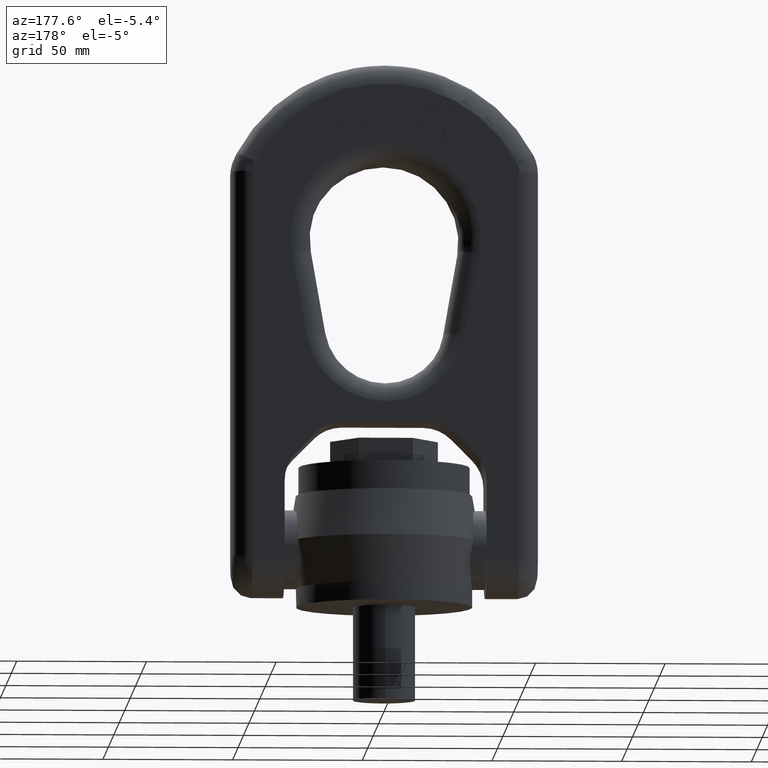
[diagram: clean part render]
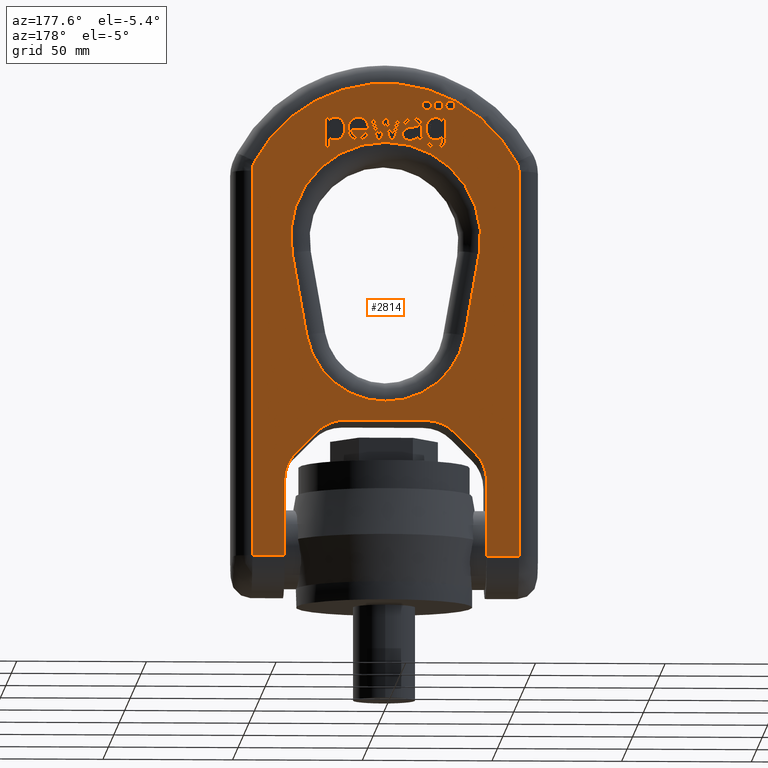
[diagram: same view with one face highlighted and labeled with its STEP entity id]
A machine part, auxiliary view. The second image highlights one B-rep face of the part: STEP entity #2814.
In plain terms, the highlighted planar face has unit normal (0, 1, 0).
Its self-contained STEP definition (entity closure, byte-faithful):
#337=B_SPLINE_CURVE_WITH_KNOTS('',3,(#7431,#7432,#7433,#7434),
 .UNSPECIFIED.,.F.,.F.,(4,4),(0.,1.),.UNSPECIFIED.);
#338=B_SPLINE_CURVE_WITH_KNOTS('',3,(#7436,#7437,#7438,#7439,#7440,#7441,
#7442,#7443,#7444,#7445),.UNSPECIFIED.,.F.,.F.,(4,2,2,2,4),(0.,0.228358481914092,
0.466434346037287,0.703045305681466,1.),.UNSPECIFIED.);
#339=B_SPLINE_CURVE_WITH_KNOTS('',3,(#7447,#7448,#7449,#7450),
 .UNSPECIFIED.,.F.,.F.,(4,4),(0.,1.),.UNSPECIFIED.);
#340=B_SPLINE_CURVE_WITH_KNOTS('',3,(#7454,#7455,#7456,#7457),
 .UNSPECIFIED.,.F.,.F.,(4,4),(0.,1.),.UNSPECIFIED.);
#341=B_SPLINE_CURVE_WITH_KNOTS('',3,(#7459,#7460,#7461,#7462),
 .UNSPECIFIED.,.F.,.F.,(4,4),(0.,1.),.UNSPECIFIED.);
#342=B_SPLINE_CURVE_WITH_KNOTS('',3,(#7464,#7465,#7466,#7467),
 .UNSPECIFIED.,.F.,.F.,(4,4),(0.,1.),.UNSPECIFIED.);
#343=B_SPLINE_CURVE_WITH_KNOTS('',3,(#7469,#7470,#7471,#7472),
 .UNSPECIFIED.,.F.,.F.,(4,4),(0.,1.),.UNSPECIFIED.);
#344=B_SPLINE_CURVE_WITH_KNOTS('',3,(#7474,#7475,#7476,#7477,#7478,#7479),
 .UNSPECIFIED.,.F.,.F.,(4,2,4),(0.,0.559782608695654,1.),.UNSPECIFIED.);
#345=B_SPLINE_CURVE_WITH_KNOTS('',3,(#7481,#7482,#7483,#7484),
 .UNSPECIFIED.,.F.,.F.,(4,4),(0.,1.),.UNSPECIFIED.);
#346=B_SPLINE_CURVE_WITH_KNOTS('',3,(#7488,#7489,#7490,#7491),
 .UNSPECIFIED.,.F.,.F.,(4,4),(0.,1.),.UNSPECIFIED.);
#347=B_SPLINE_CURVE_WITH_KNOTS('',3,(#7493,#7494,#7495,#7496,#7497,#7498),
 .UNSPECIFIED.,.F.,.F.,(4,2,4),(0.,0.476123595505615,1.),.UNSPECIFIED.);
#348=B_SPLINE_CURVE_WITH_KNOTS('',3,(#7500,#7501,#7502,#7503),
 .UNSPECIFIED.,.F.,.F.,(4,4),(0.,1.),.UNSPECIFIED.);
#349=B_SPLINE_CURVE_WITH_KNOTS('',3,(#7505,#7506,#7507,#7508,#7509,#7510,
#7511,#7512),.UNSPECIFIED.,.F.,.F.,(4,2,2,4),(0.,0.472355769230771,0.730769230769235,
1.),.UNSPECIFIED.);
#350=B_SPLINE_CURVE_WITH_KNOTS('',3,(#7514,#7515,#7516,#7517),
 .UNSPECIFIED.,.F.,.F.,(4,4),(0.,1.),.UNSPECIFIED.);
#351=B_SPLINE_CURVE_WITH_KNOTS('',3,(#7525,#7526,#7527,#7528),
 .UNSPECIFIED.,.F.,.F.,(4,4),(0.,1.),.UNSPECIFIED.);
#352=B_SPLINE_CURVE_WITH_KNOTS('',3,(#7530,#7531,#7532,#7533),
 .UNSPECIFIED.,.F.,.F.,(4,4),(0.,1.),.UNSPECIFIED.);
#353=B_SPLINE_CURVE_WITH_KNOTS('',3,(#7555,#7556,#7557,#7558),
 .UNSPECIFIED.,.F.,.F.,(4,4),(0.,1.),.UNSPECIFIED.);
#354=B_SPLINE_CURVE_WITH_KNOTS('',3,(#7568,#7569,#7570,#7571),
 .UNSPECIFIED.,.F.,.F.,(4,4),(0.,1.),.UNSPECIFIED.);
#355=B_SPLINE_CURVE_WITH_KNOTS('',3,(#7573,#7574,#7575,#7576,#7577,#7578),
 .UNSPECIFIED.,.F.,.F.,(4,2,4),(0.,0.434679334916865,1.),.UNSPECIFIED.);
#356=B_SPLINE_CURVE_WITH_KNOTS('',3,(#7580,#7581,#7582,#7583),
 .UNSPECIFIED.,.F.,.F.,(4,4),(0.,1.),.UNSPECIFIED.);
#357=B_SPLINE_CURVE_WITH_KNOTS('',3,(#7587,#7588,#7589,#7590),
 .UNSPECIFIED.,.F.,.F.,(4,4),(0.,1.),.UNSPECIFIED.);
#358=B_SPLINE_CURVE_WITH_KNOTS('',3,(#7592,#7593,#7594,#7595,#7596,#7597),
 .UNSPECIFIED.,.F.,.F.,(4,2,4),(0.,0.570469798657719,1.),.UNSPECIFIED.);
#359=B_SPLINE_CURVE_WITH_KNOTS('',3,(#7599,#7600,#7601,#7602,#7603,#7604,
#7605,#7606,#7607,#7608,#7609,#7610),.UNSPECIFIED.,.F.,.F.,(4,2,2,2,2,4),
(0.,0.122570626594233,0.245141253188469,0.495637533752417,0.746133814316361,
1.),.UNSPECIFIED.);
#360=B_SPLINE_CURVE_WITH_KNOTS('',3,(#7612,#7613,#7614,#7615),
 .UNSPECIFIED.,.F.,.F.,(4,4),(0.,1.),.UNSPECIFIED.);
#361=B_SPLINE_CURVE_WITH_KNOTS('',3,(#7616,#7617,#7618,#7619),
 .UNSPECIFIED.,.F.,.F.,(4,4),(0.,1.),.UNSPECIFIED.);
#362=B_SPLINE_CURVE_WITH_KNOTS('',3,(#7622,#7623,#7624,#7625),
 .UNSPECIFIED.,.F.,.F.,(4,4),(0.,1.),.UNSPECIFIED.);
#363=B_SPLINE_CURVE_WITH_KNOTS('',3,(#7627,#7628,#7629,#7630,#7631,#7632,
#7633,#7634,#7635,#7636),.UNSPECIFIED.,.F.,.F.,(4,2,2,2,4),(0.,0.230139294836347,
0.492074150143504,0.754009005450667,1.),.UNSPECIFIED.);
#364=B_SPLINE_CURVE_WITH_KNOTS('',3,(#7653,#7654,#7655,#7656,#7657,#7658),
 .UNSPECIFIED.,.F.,.F.,(4,2,4),(0.,0.329498767460961,1.),.UNSPECIFIED.);
#365=B_SPLINE_CURVE_WITH_KNOTS('',3,(#7661,#7662,#7663,#7664,#7665,#7666,
#7667,#7668),.UNSPECIFIED.,.F.,.F.,(4,2,2,4),(0.,0.361028692437345,0.681441656975491,
1.),.UNSPECIFIED.);
#366=B_SPLINE_CURVE_WITH_KNOTS('',3,(#7670,#7671,#7672,#7673),
 .UNSPECIFIED.,.F.,.F.,(4,4),(0.,1.),.UNSPECIFIED.);
#367=B_SPLINE_CURVE_WITH_KNOTS('',3,(#7677,#7678,#7679,#7680),
 .UNSPECIFIED.,.F.,.F.,(4,4),(0.,1.),.UNSPECIFIED.);
#368=B_SPLINE_CURVE_WITH_KNOTS('',3,(#7682,#7683,#7684,#7685,#7686,#7687),
 .UNSPECIFIED.,.F.,.F.,(4,2,4),(0.,0.55580357142857,1.),.UNSPECIFIED.);
#369=B_SPLINE_CURVE_WITH_KNOTS('',3,(#7689,#7690,#7691,#7692,#7693,#7694),
 .UNSPECIFIED.,.F.,.F.,(4,2,4),(0.,0.499999999999998,1.),.UNSPECIFIED.);
#370=B_SPLINE_CURVE_WITH_KNOTS('',3,(#7696,#7697,#7698,#7699,#7700,#7701,
#7702,#7703,#7704,#7705,#7706,#7707,#7708,#7709),.UNSPECIFIED.,.F.,.F.,
(4,2,2,2,2,2,4),(0.,0.152201346045993,0.327187324733602,0.502173303421207,
0.67631800336512,0.850462703309032,1.),.UNSPECIFIED.);
#1766=LINE('',#7041,#2074);
#1769=LINE('',#7050,#2077);
#1771=LINE('',#7059,#2079);
#1772=LINE('',#7063,#2080);
#1815=LINE('',#7395,#2123);
#1816=LINE('',#7400,#2124);
#1817=LINE('',#7406,#2125);
#1818=LINE('',#7407,#2126);
#1819=LINE('',#7411,#2127);
#1820=LINE('',#7415,#2128);
#1821=LINE('',#7419,#2129);
#1822=LINE('',#7422,#2130);
#1823=LINE('',#7423,#2131);
#1824=LINE('',#7428,#2132);
#1825=LINE('',#7452,#2133);
#1826=LINE('',#7486,#2134);
#1827=LINE('',#7518,#2135);
#1828=LINE('',#7521,#2136);
#1829=LINE('',#7523,#2137);
#1830=LINE('',#7535,#2138);
#1831=LINE('',#7537,#2139);
#1832=LINE('',#7539,#2140);
#1833=LINE('',#7541,#2141);
#1834=LINE('',#7543,#2142);
#1835=LINE('',#7545,#2143);
#1836=LINE('',#7547,#2144);
#1837=LINE('',#7549,#2145);
#1838=LINE('',#7551,#2146);
#1839=LINE('',#7553,#2147);
#1840=LINE('',#7560,#2148);
#1841=LINE('',#7562,#2149);
#1842=LINE('',#7564,#2150);
#1843=LINE('',#7565,#2151);
#1844=LINE('',#7585,#2152);
#1845=LINE('',#7638,#2153);
#1846=LINE('',#7640,#2154);
#1847=LINE('',#7642,#2155);
#1848=LINE('',#7644,#2156);
#1849=LINE('',#7646,#2157);
#1850=LINE('',#7648,#2158);
#1851=LINE('',#7650,#2159);
#1852=LINE('',#7675,#2160);
#1853=LINE('',#7711,#2161);
#1854=LINE('',#7713,#2162);
#1855=LINE('',#7715,#2163);
#2074=VECTOR('',#6167,1.);
#2077=VECTOR('',#6174,1.);
#2079=VECTOR('',#6182,1.);
#2080=VECTOR('',#6187,1.);
#2123=VECTOR('',#6260,1.);
#2124=VECTOR('',#6263,1.);
#2125=VECTOR('',#6268,1.);
#2126=VECTOR('',#6269,1.);
#2127=VECTOR('',#6272,1.);
#2128=VECTOR('',#6275,1.);
#2129=VECTOR('',#6278,1.);
#2130=VECTOR('',#6281,1.);
#2131=VECTOR('',#6282,1.);
#2132=VECTOR('',#6287,1.);
#2133=VECTOR('',#6288,1.);
#2134=VECTOR('',#6289,1.);
#2135=VECTOR('',#6290,1.);
#2136=VECTOR('',#6291,1.);
#2137=VECTOR('',#6292,1.);
#2138=VECTOR('',#6293,1.);
#2139=VECTOR('',#6294,1.);
#2140=VECTOR('',#6295,1.);
#2141=VECTOR('',#6296,1.);
#2142=VECTOR('',#6297,1.);
#2143=VECTOR('',#6298,1.);
#2144=VECTOR('',#6299,1.);
#2145=VECTOR('',#6300,1.);
#2146=VECTOR('',#6301,1.);
#2147=VECTOR('',#6302,1.);
#2148=VECTOR('',#6303,1.);
#2149=VECTOR('',#6304,1.);
#2150=VECTOR('',#6305,1.);
#2151=VECTOR('',#6306,1.);
#2152=VECTOR('',#6307,1.);
#2153=VECTOR('',#6308,1.);
#2154=VECTOR('',#6309,1.);
#2155=VECTOR('',#6310,1.);
#2156=VECTOR('',#6311,1.);
#2157=VECTOR('',#6312,1.);
#2158=VECTOR('',#6313,1.);
#2159=VECTOR('',#6314,1.);
#2160=VECTOR('',#6317,1.);
#2161=VECTOR('',#6318,1.);
#2162=VECTOR('',#6319,1.);
#2163=VECTOR('',#6320,1.);
#2686=PLANE('',#5894);
#2814=ADVANCED_FACE('',(#3097,#3098,#3099,#3100,#3101,#3102,#3103,#3104,
#3105,#3106),#2686,.T.);
#3097=FACE_BOUND('',#3183,.T.);
#3098=FACE_BOUND('',#3184,.T.);
#3099=FACE_BOUND('',#3185,.T.);
#3100=FACE_BOUND('',#3186,.T.);
#3101=FACE_BOUND('',#3187,.T.);
#3102=FACE_BOUND('',#3188,.T.);
#3103=FACE_BOUND('',#3189,.T.);
#3104=FACE_BOUND('',#3190,.T.);
#3105=FACE_BOUND('',#3191,.T.);
#3106=FACE_BOUND('',#3192,.T.);
#3183=EDGE_LOOP('',(#3628,#3629,#3630,#3631));
#3184=EDGE_LOOP('',(#3632,#3633,#3634,#3635,#3636,#3637,#3638,#3639,#3640,
#3641,#3642,#3643,#3644,#3645,#3646,#3647,#3648,#3649));
#3185=EDGE_LOOP('',(#3650,#3651,#3652,#3653,#3654,#3655,#3656,#3657,#3658,
#3659,#3660,#3661,#3662,#3663,#3664,#3665,#3666));
#3186=EDGE_LOOP('',(#3667,#3668,#3669,#3670,#3671,#3672,#3673,#3674,#3675,
#3676,#3677,#3678,#3679,#3680,#3681,#3682,#3683,#3684,#3685));
#3187=EDGE_LOOP('',(#3686,#3687,#3688,#3689,#3690,#3691,#3692,#3693,#3694));
#3188=EDGE_LOOP('',(#3695,#3696,#3697,#3698,#3699,#3700,#3701,#3702,#3703,
#3704));
#3189=EDGE_LOOP('',(#3705));
#3190=EDGE_LOOP('',(#3706,#3707,#3708,#3709,#3710,#3711,#3712,#3713,#3714,
#3715,#3716));
#3191=EDGE_LOOP('',(#3717));
#3192=EDGE_LOOP('',(#3718));
#3628=ORIENTED_EDGE('',*,*,#5263,.T.);
#3629=ORIENTED_EDGE('',*,*,#5264,.T.);
#3630=ORIENTED_EDGE('',*,*,#5265,.T.);
#3631=ORIENTED_EDGE('',*,*,#5266,.T.);
#3632=ORIENTED_EDGE('',*,*,#5267,.T.);
#3633=ORIENTED_EDGE('',*,*,#5268,.T.);
#3634=ORIENTED_EDGE('',*,*,#5173,.T.);
#3635=ORIENTED_EDGE('',*,*,#5167,.T.);
#3636=ORIENTED_EDGE('',*,*,#5269,.T.);
#3637=ORIENTED_EDGE('',*,*,#5270,.T.);
#3638=ORIENTED_EDGE('',*,*,#5271,.T.);
#3639=ORIENTED_EDGE('',*,*,#5272,.T.);
#3640=ORIENTED_EDGE('',*,*,#5273,.T.);
#3641=ORIENTED_EDGE('',*,*,#5274,.T.);
#3642=ORIENTED_EDGE('',*,*,#5275,.T.);
#3643=ORIENTED_EDGE('',*,*,#5276,.T.);
#3644=ORIENTED_EDGE('',*,*,#5163,.T.);
#3645=ORIENTED_EDGE('',*,*,#5277,.T.);
#3646=ORIENTED_EDGE('',*,*,#5171,.T.);
#3647=ORIENTED_EDGE('',*,*,#5278,.T.);
#3648=ORIENTED_EDGE('',*,*,#5279,.T.);
#3649=ORIENTED_EDGE('',*,*,#5280,.T.);
#3650=ORIENTED_EDGE('',*,*,#5281,.F.);
#3651=ORIENTED_EDGE('',*,*,#5282,.F.);
#3652=ORIENTED_EDGE('',*,*,#5283,.F.);
#3653=ORIENTED_EDGE('',*,*,#5284,.F.);
#3654=ORIENTED_EDGE('',*,*,#5285,.F.);
#3655=ORIENTED_EDGE('',*,*,#5286,.F.);
#3656=ORIENTED_EDGE('',*,*,#5287,.F.);
#3657=ORIENTED_EDGE('',*,*,#5288,.F.);
#3658=ORIENTED_EDGE('',*,*,#5289,.F.);
#3659=ORIENTED_EDGE('',*,*,#5290,.F.);
#3660=ORIENTED_EDGE('',*,*,#5291,.F.);
#3661=ORIENTED_EDGE('',*,*,#5292,.F.);
#3662=ORIENTED_EDGE('',*,*,#5293,.F.);
#3663=ORIENTED_EDGE('',*,*,#5294,.F.);
#3664=ORIENTED_EDGE('',*,*,#5295,.F.);
#3665=ORIENTED_EDGE('',*,*,#5296,.F.);
#3666=ORIENTED_EDGE('',*,*,#5297,.F.);
#3667=ORIENTED_EDGE('',*,*,#5298,.F.);
#3668=ORIENTED_EDGE('',*,*,#5299,.F.);
#3669=ORIENTED_EDGE('',*,*,#5300,.F.);
#3670=ORIENTED_EDGE('',*,*,#5301,.F.);
#3671=ORIENTED_EDGE('',*,*,#5302,.F.);
#3672=ORIENTED_EDGE('',*,*,#5303,.F.);
#3673=ORIENTED_EDGE('',*,*,#5304,.F.);
#3674=ORIENTED_EDGE('',*,*,#5305,.F.);
#3675=ORIENTED_EDGE('',*,*,#5306,.F.);
#3676=ORIENTED_EDGE('',*,*,#5307,.F.);
#3677=ORIENTED_EDGE('',*,*,#5308,.F.);
#3678=ORIENTED_EDGE('',*,*,#5309,.F.);
#3679=ORIENTED_EDGE('',*,*,#5310,.F.);
#3680=ORIENTED_EDGE('',*,*,#5311,.F.);
#3681=ORIENTED_EDGE('',*,*,#5312,.F.);
#3682=ORIENTED_EDGE('',*,*,#5313,.F.);
#3683=ORIENTED_EDGE('',*,*,#5314,.F.);
#3684=ORIENTED_EDGE('',*,*,#5315,.F.);
#3685=ORIENTED_EDGE('',*,*,#5316,.F.);
#3686=ORIENTED_EDGE('',*,*,#5317,.F.);
#3687=ORIENTED_EDGE('',*,*,#5318,.F.);
#3688=ORIENTED_EDGE('',*,*,#5319,.F.);
#3689=ORIENTED_EDGE('',*,*,#5320,.F.);
#3690=ORIENTED_EDGE('',*,*,#5321,.F.);
#3691=ORIENTED_EDGE('',*,*,#5322,.F.);
#3692=ORIENTED_EDGE('',*,*,#5323,.F.);
#3693=ORIENTED_EDGE('',*,*,#5324,.F.);
#3694=ORIENTED_EDGE('',*,*,#5325,.F.);
#3695=ORIENTED_EDGE('',*,*,#5326,.F.);
#3696=ORIENTED_EDGE('',*,*,#5327,.F.);
#3697=ORIENTED_EDGE('',*,*,#5328,.F.);
#3698=ORIENTED_EDGE('',*,*,#5329,.F.);
#3699=ORIENTED_EDGE('',*,*,#5330,.F.);
#3700=ORIENTED_EDGE('',*,*,#5331,.F.);
#3701=ORIENTED_EDGE('',*,*,#5332,.F.);
#3702=ORIENTED_EDGE('',*,*,#5333,.F.);
#3703=ORIENTED_EDGE('',*,*,#5334,.F.);
#3704=ORIENTED_EDGE('',*,*,#5335,.F.);
#3705=ORIENTED_EDGE('',*,*,#5336,.F.);
#3706=ORIENTED_EDGE('',*,*,#5337,.F.);
#3707=ORIENTED_EDGE('',*,*,#5338,.F.);
#3708=ORIENTED_EDGE('',*,*,#5339,.F.);
#3709=ORIENTED_EDGE('',*,*,#5340,.F.);
#3710=ORIENTED_EDGE('',*,*,#5341,.F.);
#3711=ORIENTED_EDGE('',*,*,#5342,.F.);
#3712=ORIENTED_EDGE('',*,*,#5343,.F.);
#3713=ORIENTED_EDGE('',*,*,#5344,.F.);
#3714=ORIENTED_EDGE('',*,*,#5345,.F.);
#3715=ORIENTED_EDGE('',*,*,#5346,.F.);
#3716=ORIENTED_EDGE('',*,*,#5347,.F.);
#3717=ORIENTED_EDGE('',*,*,#5348,.F.);
#3718=ORIENTED_EDGE('',*,*,#5349,.F.);
#4731=VERTEX_POINT('',#7040);
#4732=VERTEX_POINT('',#7042);
#4735=VERTEX_POINT('',#7049);
#4736=VERTEX_POINT('',#7051);
#4739=VERTEX_POINT('',#7058);
#4740=VERTEX_POINT('',#7060);
#4741=VERTEX_POINT('',#7064);
#4827=VERTEX_POINT('',#7396);
#4828=VERTEX_POINT('',#7397);
#4829=VERTEX_POINT('',#7399);
#4830=VERTEX_POINT('',#7401);
#4831=VERTEX_POINT('',#7404);
#4832=VERTEX_POINT('',#7405);
#4833=VERTEX_POINT('',#7408);
#4834=VERTEX_POINT('',#7410);
#4835=VERTEX_POINT('',#7412);
#4836=VERTEX_POINT('',#7414);
#4837=VERTEX_POINT('',#7416);
#4838=VERTEX_POINT('',#7418);
#4839=VERTEX_POINT('',#7420);
#4840=VERTEX_POINT('',#7424);
#4841=VERTEX_POINT('',#7426);
#4842=VERTEX_POINT('',#7429);
#4843=VERTEX_POINT('',#7430);
#4844=VERTEX_POINT('',#7435);
#4845=VERTEX_POINT('',#7446);
#4846=VERTEX_POINT('',#7451);
#4847=VERTEX_POINT('',#7453);
#4848=VERTEX_POINT('',#7458);
#4849=VERTEX_POINT('',#7463);
#4850=VERTEX_POINT('',#7468);
#4851=VERTEX_POINT('',#7473);
#4852=VERTEX_POINT('',#7480);
#4853=VERTEX_POINT('',#7485);
#4854=VERTEX_POINT('',#7487);
#4855=VERTEX_POINT('',#7492);
#4856=VERTEX_POINT('',#7499);
#4857=VERTEX_POINT('',#7504);
#4858=VERTEX_POINT('',#7513);
#4859=VERTEX_POINT('',#7519);
#4860=VERTEX_POINT('',#7520);
#4861=VERTEX_POINT('',#7522);
#4862=VERTEX_POINT('',#7524);
#4863=VERTEX_POINT('',#7529);
#4864=VERTEX_POINT('',#7534);
#4865=VERTEX_POINT('',#7536);
#4866=VERTEX_POINT('',#7538);
#4867=VERTEX_POINT('',#7540);
#4868=VERTEX_POINT('',#7542);
#4869=VERTEX_POINT('',#7544);
#4870=VERTEX_POINT('',#7546);
#4871=VERTEX_POINT('',#7548);
#4872=VERTEX_POINT('',#7550);
#4873=VERTEX_POINT('',#7552);
#4874=VERTEX_POINT('',#7554);
#4875=VERTEX_POINT('',#7559);
#4876=VERTEX_POINT('',#7561);
#4877=VERTEX_POINT('',#7563);
#4878=VERTEX_POINT('',#7566);
#4879=VERTEX_POINT('',#7567);
#4880=VERTEX_POINT('',#7572);
#4881=VERTEX_POINT('',#7579);
#4882=VERTEX_POINT('',#7584);
#4883=VERTEX_POINT('',#7586);
#4884=VERTEX_POINT('',#7591);
#4885=VERTEX_POINT('',#7598);
#4886=VERTEX_POINT('',#7611);
#4887=VERTEX_POINT('',#7620);
#4888=VERTEX_POINT('',#7621);
#4889=VERTEX_POINT('',#7626);
#4890=VERTEX_POINT('',#7637);
#4891=VERTEX_POINT('',#7639);
#4892=VERTEX_POINT('',#7641);
#4893=VERTEX_POINT('',#7643);
#4894=VERTEX_POINT('',#7645);
#4895=VERTEX_POINT('',#7647);
#4896=VERTEX_POINT('',#7649);
#4897=VERTEX_POINT('',#7652);
#4898=VERTEX_POINT('',#7659);
#4899=VERTEX_POINT('',#7660);
#4900=VERTEX_POINT('',#7669);
#4901=VERTEX_POINT('',#7674);
#4902=VERTEX_POINT('',#7676);
#4903=VERTEX_POINT('',#7681);
#4904=VERTEX_POINT('',#7688);
#4905=VERTEX_POINT('',#7695);
#4906=VERTEX_POINT('',#7710);
#4907=VERTEX_POINT('',#7712);
#4908=VERTEX_POINT('',#7714);
#4909=VERTEX_POINT('',#7717);
#4910=VERTEX_POINT('',#7719);
#5163=EDGE_CURVE('',#4732,#4731,#1766,.T.);
#5167=EDGE_CURVE('',#4736,#4735,#1769,.T.);
#5171=EDGE_CURVE('',#4740,#4739,#1771,.T.);
#5173=EDGE_CURVE('',#4741,#4736,#1772,.T.);
#5263=EDGE_CURVE('',#4827,#4828,#1815,.T.);
#5264=EDGE_CURVE('',#4828,#4829,#5775,.T.);
#5265=EDGE_CURVE('',#4829,#4830,#1816,.T.);
#5266=EDGE_CURVE('',#4830,#4827,#5776,.T.);
#5267=EDGE_CURVE('',#4831,#4832,#5777,.T.);
#5268=EDGE_CURVE('',#4832,#4741,#1817,.T.);
#5269=EDGE_CURVE('',#4735,#4833,#1818,.T.);
#5270=EDGE_CURVE('',#4833,#4834,#5778,.T.);
#5271=EDGE_CURVE('',#4834,#4835,#1819,.T.);
#5272=EDGE_CURVE('',#4835,#4836,#5779,.T.);
#5273=EDGE_CURVE('',#4836,#4837,#1820,.T.);
#5274=EDGE_CURVE('',#4837,#4838,#5780,.T.);
#5275=EDGE_CURVE('',#4838,#4839,#1821,.T.);
#5276=EDGE_CURVE('',#4839,#4732,#5781,.T.);
#5277=EDGE_CURVE('',#4731,#4740,#1822,.T.);
#5278=EDGE_CURVE('',#4739,#4840,#1823,.T.);
#5279=EDGE_CURVE('',#4840,#4841,#5782,.T.);
#5280=EDGE_CURVE('',#4841,#4831,#5783,.T.);
#5281=EDGE_CURVE('',#4842,#4843,#1824,.T.);
#5282=EDGE_CURVE('',#4844,#4842,#337,.T.);
#5283=EDGE_CURVE('',#4845,#4844,#338,.T.);
#5284=EDGE_CURVE('',#4846,#4845,#339,.T.);
#5285=EDGE_CURVE('',#4847,#4846,#1825,.T.);
#5286=EDGE_CURVE('',#4848,#4847,#340,.T.);
#5287=EDGE_CURVE('',#4849,#4848,#341,.T.);
#5288=EDGE_CURVE('',#4850,#4849,#342,.T.);
#5289=EDGE_CURVE('',#4851,#4850,#343,.T.);
#5290=EDGE_CURVE('',#4852,#4851,#344,.T.);
#5291=EDGE_CURVE('',#4853,#4852,#345,.T.);
#5292=EDGE_CURVE('',#4854,#4853,#1826,.T.);
#5293=EDGE_CURVE('',#4855,#4854,#346,.T.);
#5294=EDGE_CURVE('',#4856,#4855,#347,.T.);
#5295=EDGE_CURVE('',#4857,#4856,#348,.T.);
#5296=EDGE_CURVE('',#4858,#4857,#349,.T.);
#5297=EDGE_CURVE('',#4843,#4858,#350,.T.);
#5298=EDGE_CURVE('',#4859,#4860,#1827,.T.);
#5299=EDGE_CURVE('',#4861,#4859,#1828,.T.);
#5300=EDGE_CURVE('',#4862,#4861,#1829,.T.);
#5301=EDGE_CURVE('',#4863,#4862,#351,.T.);
#5302=EDGE_CURVE('',#4864,#4863,#352,.T.);
#5303=EDGE_CURVE('',#4865,#4864,#1830,.T.);
#5304=EDGE_CURVE('',#4866,#4865,#1831,.T.);
#5305=EDGE_CURVE('',#4867,#4866,#1832,.T.);
#5306=EDGE_CURVE('',#4868,#4867,#1833,.T.);
#5307=EDGE_CURVE('',#4869,#4868,#1834,.T.);
#5308=EDGE_CURVE('',#4870,#4869,#1835,.T.);
#5309=EDGE_CURVE('',#4871,#4870,#1836,.T.);
#5310=EDGE_CURVE('',#4872,#4871,#1837,.T.);
#5311=EDGE_CURVE('',#4873,#4872,#1838,.T.);
#5312=EDGE_CURVE('',#4874,#4873,#1839,.T.);
#5313=EDGE_CURVE('',#4875,#4874,#353,.T.);
#5314=EDGE_CURVE('',#4876,#4875,#1840,.T.);
#5315=EDGE_CURVE('',#4877,#4876,#1841,.T.);
#5316=EDGE_CURVE('',#4860,#4877,#1842,.T.);
#5317=EDGE_CURVE('',#4878,#4879,#1843,.T.);
#5318=EDGE_CURVE('',#4880,#4878,#354,.T.);
#5319=EDGE_CURVE('',#4881,#4880,#355,.T.);
#5320=EDGE_CURVE('',#4882,#4881,#356,.T.);
#5321=EDGE_CURVE('',#4883,#4882,#1844,.T.);
#5322=EDGE_CURVE('',#4884,#4883,#357,.T.);
#5323=EDGE_CURVE('',#4885,#4884,#358,.T.);
#5324=EDGE_CURVE('',#4886,#4885,#359,.T.);
#5325=EDGE_CURVE('',#4879,#4886,#360,.T.);
#5326=EDGE_CURVE('',#4887,#4888,#361,.T.);
#5327=EDGE_CURVE('',#4889,#4887,#362,.T.);
#5328=EDGE_CURVE('',#4890,#4889,#363,.T.);
#5329=EDGE_CURVE('',#4891,#4890,#1845,.T.);
#5330=EDGE_CURVE('',#4892,#4891,#1846,.T.);
#5331=EDGE_CURVE('',#4893,#4892,#1847,.T.);
#5332=EDGE_CURVE('',#4894,#4893,#1848,.T.);
#5333=EDGE_CURVE('',#4895,#4894,#1849,.T.);
#5334=EDGE_CURVE('',#4896,#4895,#1850,.T.);
#5335=EDGE_CURVE('',#4888,#4896,#1851,.T.);
#5336=EDGE_CURVE('',#4897,#4897,#5784,.T.);
#5337=EDGE_CURVE('',#4898,#4899,#364,.T.);
#5338=EDGE_CURVE('',#4900,#4898,#365,.T.);
#5339=EDGE_CURVE('',#4901,#4900,#366,.T.);
#5340=EDGE_CURVE('',#4902,#4901,#1852,.T.);
#5341=EDGE_CURVE('',#4903,#4902,#367,.T.);
#5342=EDGE_CURVE('',#4904,#4903,#368,.T.);
#5343=EDGE_CURVE('',#4905,#4904,#369,.T.);
#5344=EDGE_CURVE('',#4906,#4905,#370,.T.);
#5345=EDGE_CURVE('',#4907,#4906,#1853,.T.);
#5346=EDGE_CURVE('',#4908,#4907,#1854,.T.);
#5347=EDGE_CURVE('',#4899,#4908,#1855,.T.);
#5348=EDGE_CURVE('',#4909,#4909,#5785,.T.);
#5349=EDGE_CURVE('',#4910,#4910,#5786,.T.);
#5775=CIRCLE('',#5882,36.6);
#5776=CIRCLE('',#5883,30.9262655562737);
#5777=CIRCLE('',#5884,7.6);
#5778=CIRCLE('',#5885,15.2);
#5779=CIRCLE('',#5886,15.2);
#5780=CIRCLE('',#5887,15.2);
#5781=CIRCLE('',#5888,15.2);
#5782=CIRCLE('',#5889,7.6);
#5783=CIRCLE('',#5890,57.2026315789474);
#5784=CIRCLE('',#5891,1.74);
#5785=CIRCLE('',#5892,1.74);
#5786=CIRCLE('',#5893,1.74);
#5882=AXIS2_PLACEMENT_3D('',#7398,#6261,#6262);
#5883=AXIS2_PLACEMENT_3D('',#7402,#6264,#6265);
#5884=AXIS2_PLACEMENT_3D('',#7403,#6266,#6267);
#5885=AXIS2_PLACEMENT_3D('',#7409,#6270,#6271);
#5886=AXIS2_PLACEMENT_3D('',#7413,#6273,#6274);
#5887=AXIS2_PLACEMENT_3D('',#7417,#6276,#6277);
#5888=AXIS2_PLACEMENT_3D('',#7421,#6279,#6280);
#5889=AXIS2_PLACEMENT_3D('',#7425,#6283,#6284);
#5890=AXIS2_PLACEMENT_3D('',#7427,#6285,#6286);
#5891=AXIS2_PLACEMENT_3D('',#7651,#6315,#6316);
#5892=AXIS2_PLACEMENT_3D('',#7716,#6321,#6322);
#5893=AXIS2_PLACEMENT_3D('',#7718,#6323,#6324);
#5894=AXIS2_PLACEMENT_3D('',#7720,#6325,#6326);
#6167=DIRECTION('',(-1.28498035257541E-16,3.01059425481522E-31,-1.));
#6174=DIRECTION('',(-1.28498035257541E-16,3.01059425481522E-31,1.));
#6182=DIRECTION('',(-1.,2.34291072916505E-15,1.17608371252665E-15));
#6187=DIRECTION('',(-1.,2.34291072916505E-15,1.17608371252665E-15));
#6260=DIRECTION('',(0.173648177666931,-4.06842178555811E-16,0.984807753012208));
#6261=DIRECTION('',(-2.34291072916505E-15,-1.,0.));
#6262=DIRECTION('',(-1.,2.32244399789245E-15,0.));
#6263=DIRECTION('',(0.173648177666931,-4.06842178555811E-16,-0.984807753012208));
#6264=DIRECTION('',(-2.34291072916505E-15,-1.,0.));
#6265=DIRECTION('',(-1.,2.35587403394865E-15,0.));
#6266=DIRECTION('',(2.34291072916505E-15,1.,0.));
#6267=DIRECTION('',(-1.,2.28253088944317E-15,0.));
#6268=DIRECTION('',(8.28524645242654E-17,-1.94115928071668E-31,-1.));
#6269=DIRECTION('',(-1.28498035257541E-16,3.01059425481522E-31,1.));
#6270=DIRECTION('',(-2.34291072916505E-15,-1.,0.));
#6271=DIRECTION('',(-1.,2.39665743391533E-15,0.));
#6272=DIRECTION('',(-0.707106781186548,1.65668806430732E-15,0.707106781186547));
#6273=DIRECTION('',(-2.34291072916505E-15,-1.,0.));
#6274=DIRECTION('',(-1.,2.39665743391533E-15,0.));
#6275=DIRECTION('',(-1.,2.34291072916505E-15,0.));
#6276=DIRECTION('',(-2.34291072916505E-15,-1.,0.));
#6277=DIRECTION('',(-1.,2.39665743391533E-15,0.));
#6278=DIRECTION('',(-0.707106781186548,1.65668806430732E-15,-0.707106781186547));
#6279=DIRECTION('',(-2.34291072916505E-15,-1.,0.));
#6280=DIRECTION('',(-1.,2.39665743391533E-15,0.));
#6281=DIRECTION('',(-1.28498035257541E-16,3.01059425481522E-31,-1.));
#6282=DIRECTION('',(8.28524645242654E-17,-1.94115928071668E-31,1.));
#6283=DIRECTION('',(2.34291072916505E-15,1.,0.));
#6284=DIRECTION('',(-1.,2.28253088944317E-15,0.));
#6285=DIRECTION('',(2.34291072916505E-15,1.,0.));
#6286=DIRECTION('',(-1.,2.33509724925617E-15,0.));
#6287=DIRECTION('',(-1.,2.34291072916505E-15,0.));
#6288=DIRECTION('',(0.989370262977938,-2.31800620424786E-15,-0.14541830261341));
#6289=DIRECTION('',(-0.991928985003781,2.32400106153516E-15,-0.126794671454947));
#6290=DIRECTION('',(-0.304245570453574,7.1282021131662E-16,0.952593634693923));
#6291=DIRECTION('',(-1.,2.34291072916505E-15,0.));
#6292=DIRECTION('',(-0.259135455314436,6.07131238563263E-16,-0.965840988879112));
#6293=DIRECTION('',(-1.,2.34291072916505E-15,0.));
#6294=DIRECTION('',(-0.254367653151694,5.95960703721637E-16,0.967107593305988));
#6295=DIRECTION('',(-1.,2.34291072916505E-15,0.));
#6296=DIRECTION('',(-0.298320908470945,6.98939257190841E-16,-0.954465628280595));
#6297=DIRECTION('',(1.,-2.34291072916505E-15,0.));
#6298=DIRECTION('',(0.269463722620021,-6.31329446847201E-16,0.963010541059526));
#6299=DIRECTION('',(0.247736970080365,-5.80425605212129E-16,-0.968827329122894));
#6300=DIRECTION('',(0.266059563516178,-6.23353805959023E-16,-0.96395659065208));
#6301=DIRECTION('',(1.,-2.34291072916505E-15,0.));
#6302=DIRECTION('',(0.253070161005813,-5.92920795452047E-16,0.96744792811215));
#6303=DIRECTION('',(1.,-2.34291072916505E-15,0.));
#6304=DIRECTION('',(0.287282618696352,-6.73077529646313E-16,-0.957845862858407));
#6305=DIRECTION('',(1.,-2.34291072916505E-15,0.));
#6306=DIRECTION('',(-1.,2.34291072916505E-15,0.));
#6307=DIRECTION('',(0.992687288142562,-2.32577769809496E-15,0.120714323757234));
#6308=DIRECTION('',(-1.,2.34291072916505E-15,0.));
#6309=DIRECTION('',(0.,0.,1.));
#6310=DIRECTION('',(-1.,2.34291072916505E-15,0.));
#6311=DIRECTION('',(0.,0.,-1.));
#6312=DIRECTION('',(1.,-2.34291072916505E-15,0.));
#6313=DIRECTION('',(0.,0.,1.));
#6314=DIRECTION('',(1.,-2.34291072916505E-15,0.));
#6315=DIRECTION('',(2.34291072916505E-15,1.,0.));
#6316=DIRECTION('',(0.,0.,-0.999999999999994));
#6317=DIRECTION('',(0.988666662925712,-2.31635773213646E-15,0.150127377980622));
#6318=DIRECTION('',(1.,-2.34291072916505E-15,0.));
#6319=DIRECTION('',(0.,0.,-1.));
#6320=DIRECTION('',(1.,-2.34291072916505E-15,0.));
#6321=DIRECTION('',(2.34291072916505E-15,1.,0.));
#6322=DIRECTION('',(0.,0.,-0.999999999999994));
#6323=DIRECTION('',(2.34291072916505E-15,1.,0.));
#6324=DIRECTION('',(0.,0.,-0.999999999999994));
#6325=DIRECTION('',(2.34291072916505E-15,1.,0.));
#6326=DIRECTION('',(0.,0.,-1.));
#7040=CARTESIAN_POINT('',(-38.94,15.2000000000001,22.2));
#7041=CARTESIAN_POINT('',(-38.94,15.2000000000001,144.197368421053));
#7042=CARTESIAN_POINT('',(-38.94,15.2000000000001,47.703953851929));
#7049=CARTESIAN_POINT('',(38.94,15.1999999999999,22.2));
#7050=CARTESIAN_POINT('',(38.94,15.1999999999999,144.197368421053));
#7051=CARTESIAN_POINT('',(38.94,15.1999999999999,18.6999999999999));
#7058=CARTESIAN_POINT('',(-51.4,15.2000000000001,18.7000000000001));
#7059=CARTESIAN_POINT('',(59.0000000000001,15.1999999999999,18.6999999999999));
#7060=CARTESIAN_POINT('',(-38.94,15.2000000000001,18.6999999999999));
#7063=CARTESIAN_POINT('',(59.0000000000001,15.1999999999999,18.6999999999999));
#7064=CARTESIAN_POINT('',(51.4,15.1999999999999,18.6999999999999));
#7395=CARTESIAN_POINT('',(36.0439637602469,15.1999999999999,135.64447669739));
#7396=CARTESIAN_POINT('',(30.4564260915328,15.1999999999999,103.955975900383));
#7397=CARTESIAN_POINT('',(36.0439637602469,15.1999999999999,135.64447669739));
#7398=CARTESIAN_POINT('',(1.78061215416544E-14,15.2,142.));
#7399=CARTESIAN_POINT('',(-36.0439637602468,15.2000000000001,135.64447669739));
#7400=CARTESIAN_POINT('',(-30.4564260915327,15.2000000000001,103.955975900383));
#7401=CARTESIAN_POINT('',(-30.4564260915328,15.2000000000001,103.955975900383));
#7402=CARTESIAN_POINT('',(1.78061215416544E-14,15.2,109.326265556274));
#7403=CARTESIAN_POINT('',(43.8,15.1999999999999,167.477855090295));
#7404=CARTESIAN_POINT('',(50.5109342670699,15.1999999999999,171.044837184877));
#7405=CARTESIAN_POINT('',(51.4,15.1999999999999,167.477855090295));
#7406=CARTESIAN_POINT('',(51.4,15.1999999999999,18.6999999999999));
#7407=CARTESIAN_POINT('',(38.94,15.1999999999999,144.197368421053));
#7408=CARTESIAN_POINT('',(38.94,15.1999999999999,47.703953851929));
#7409=CARTESIAN_POINT('',(23.74,15.1999999999999,47.703953851929));
#7410=CARTESIAN_POINT('',(34.4880230740355,15.1999999999999,58.4519769259645));
#7411=CARTESIAN_POINT('',(-25.6286842105263,15.2000000000001,118.568684210526));
#7412=CARTESIAN_POINT('',(26.3919769259645,15.1999999999999,66.5480230740355));
#7413=CARTESIAN_POINT('',(15.6439538519289,15.2,55.8));
#7414=CARTESIAN_POINT('',(15.6439538519289,15.2,71.));
#7415=CARTESIAN_POINT('',(3.56122430833087E-14,15.2,71.));
#7416=CARTESIAN_POINT('',(-15.6439538519289,15.2,71.));
#7417=CARTESIAN_POINT('',(-15.6439538519289,15.2,55.8));
#7418=CARTESIAN_POINT('',(-26.3919769259645,15.2000000000001,66.5480230740355));
#7419=CARTESIAN_POINT('',(25.6286842105263,15.1999999999999,118.568684210526));
#7420=CARTESIAN_POINT('',(-34.4880230740355,15.2000000000001,58.4519769259645));
#7421=CARTESIAN_POINT('',(-23.74,15.2000000000001,47.703953851929));
#7422=CARTESIAN_POINT('',(-38.94,15.2000000000001,144.197368421053));
#7423=CARTESIAN_POINT('',(-51.4,15.2000000000001,167.477855090295));
#7424=CARTESIAN_POINT('',(-51.4,15.2000000000001,167.477855090295));
#7425=CARTESIAN_POINT('',(-43.8,15.2000000000001,167.477855090295));
#7426=CARTESIAN_POINT('',(-50.5109342670699,15.2000000000001,171.044837184877));
#7427=CARTESIAN_POINT('',(1.78061215416544E-14,15.2,144.197368421053));
#7428=CARTESIAN_POINT('',(3.56122430833087E-14,15.2,179.6));
#7429=CARTESIAN_POINT('',(-12.9187479664215,15.2,179.6));
#7430=CARTESIAN_POINT('',(-14.4405544348279,15.2,179.6));
#7431=CARTESIAN_POINT('',(-12.6198216958417,15.2,180.635661294449));
#7432=CARTESIAN_POINT('',(-12.6771913841348,15.2,180.208339728831));
#7433=CARTESIAN_POINT('',(-12.7768334743281,15.2,179.864108467639));
#7434=CARTESIAN_POINT('',(-12.9187479664215,15.2,179.6));
#7435=CARTESIAN_POINT('',(-12.6198216958417,15.2,180.635661294449));
#7436=CARTESIAN_POINT('',(-7.3085963428125,15.2,183.543821949348));
#7437=CARTESIAN_POINT('',(-6.80736643456755,15.2,183.092760296751));
#7438=CARTESIAN_POINT('',(-6.55675148044509,15.2,182.520030698388));
#7439=CARTESIAN_POINT('',(-6.55675148044509,15.2,181.095625479662));
#7440=CARTESIAN_POINT('',(-6.81642480640331,15.2,180.51102583781));
#7441=CARTESIAN_POINT('',(-7.85794285415131,15.2,179.623511484553));
#7442=CARTESIAN_POINT('',(-8.5707294852606,15.2,179.401176771553));
#7443=CARTESIAN_POINT('',(-10.599804776469,15.2,179.401176771553));
#7444=CARTESIAN_POINT('',(-11.6475564521377,15.2,179.813660782809));
#7445=CARTESIAN_POINT('',(-12.6198216958417,15.2,180.635661294449));
#7446=CARTESIAN_POINT('',(-7.3085963428125,15.2,183.543821949348));
#7447=CARTESIAN_POINT('',(-9.92344634606622,15.2,184.442977743669));
#7448=CARTESIAN_POINT('',(-8.6824494045682,15.2,184.294602200051));
#7449=CARTESIAN_POINT('',(-7.81284570833602,15.2,183.994883601944));
#7450=CARTESIAN_POINT('',(-7.3085963428125,15.2,183.543821949348));
#7451=CARTESIAN_POINT('',(-9.92344634606622,15.2,184.442977743669));
#7452=CARTESIAN_POINT('',(5.58039222325716,15.2,182.164213186952));
#7453=CARTESIAN_POINT('',(-11.2761632068718,15.2,184.641800972116));
#7454=CARTESIAN_POINT('',(-12.523199062927,15.2,184.932617037606));
#7455=CARTESIAN_POINT('',(-12.1940782195614,15.2,184.816884113584));
#7456=CARTESIAN_POINT('',(-11.7804125723954,15.2,184.718956254797));
#7457=CARTESIAN_POINT('',(-11.2761632068718,15.2,184.641800972116));
#7458=CARTESIAN_POINT('',(-12.523199062927,15.2,184.932617037606));
#7459=CARTESIAN_POINT('',(-12.4839461183054,15.2,185.837707853671));
#7460=CARTESIAN_POINT('',(-12.5081017765341,15.2,185.662624712203));
#7461=CARTESIAN_POINT('',(-12.523199062927,15.2,185.359938603223));
#7462=CARTESIAN_POINT('',(-12.523199062927,15.2,184.932617037606));
#7463=CARTESIAN_POINT('',(-12.4839461183054,15.2,185.837707853671));
#7464=CARTESIAN_POINT('',(-12.2454089932973,15.2,186.389664875927));
#7465=CARTESIAN_POINT('',(-12.3752456562764,15.2,186.199744180097));
#7466=CARTESIAN_POINT('',(-12.4567710027982,15.2,186.015758506012));
#7467=CARTESIAN_POINT('',(-12.4839461183054,15.2,185.837707853671));
#7468=CARTESIAN_POINT('',(-12.2454089932973,15.2,186.389664875927));
#7469=CARTESIAN_POINT('',(-11.6143424220732,15.2,186.846661550269));
#7470=CARTESIAN_POINT('',(-11.9042103208173,15.2,186.730928626247));
#7471=CARTESIAN_POINT('',(-12.1125528730396,15.2,186.579585571758));
#7472=CARTESIAN_POINT('',(-12.2454089932973,15.2,186.389664875927));
#7473=CARTESIAN_POINT('',(-11.6143424220732,15.2,186.846661550269));
#7474=CARTESIAN_POINT('',(-8.96929784603368,15.2,186.680480941417));
#7475=CARTESIAN_POINT('',(-9.33163271946376,15.2,186.908979278588));
#7476=CARTESIAN_POINT('',(-9.82380425587295,15.2,187.021744691737));
#7477=CARTESIAN_POINT('',(-10.9349645343919,15.2,187.021744691737));
#7478=CARTESIAN_POINT('',(-11.3244745233292,15.2,186.965361985162));
#7479=CARTESIAN_POINT('',(-11.6143424220732,15.2,186.846661550269));
#7480=CARTESIAN_POINT('',(-8.96929784603368,15.2,186.680480941417));
#7481=CARTESIAN_POINT('',(-8.22349189822344,15.2,185.416321309798));
#7482=CARTESIAN_POINT('',(-8.35634801848114,15.2,186.033563571246));
#7483=CARTESIAN_POINT('',(-8.6069629726036,15.2,186.454950115119));
#7484=CARTESIAN_POINT('',(-8.96929784603368,15.2,186.680480941417));
#7485=CARTESIAN_POINT('',(-8.22349189822344,15.2,185.416321309798));
#7486=CARTESIAN_POINT('',(-5.31636985581132,15.2,185.787928138331));
#7487=CARTESIAN_POINT('',(-6.80736643456755,15.2,185.597339473011));
#7488=CARTESIAN_POINT('',(-8.00609097416539,15.2,187.535124072653));
#7489=CARTESIAN_POINT('',(-7.36294657382701,15.2,187.104834996163));
#7490=CARTESIAN_POINT('',(-6.96135875577534,15.2,186.457917625991));
#7491=CARTESIAN_POINT('',(-6.80736643456755,15.2,185.597339473011));
#7492=CARTESIAN_POINT('',(-8.00609097416539,15.2,187.535124072653));
#7493=CARTESIAN_POINT('',(-12.9217674237001,15.2,187.736914811972));
#7494=CARTESIAN_POINT('',(-12.4416737164053,15.2,188.036633410079));
#7495=CARTESIAN_POINT('',(-11.6868093967593,15.2,188.185008953697));
#7496=CARTESIAN_POINT('',(-9.53695581440747,15.2,188.185008953697));
#7497=CARTESIAN_POINT('',(-8.64923537450378,15.2,187.968380660015));
#7498=CARTESIAN_POINT('',(-8.00609097416539,15.2,187.535124072653));
#7499=CARTESIAN_POINT('',(-12.9217674237001,15.2,187.736914811972));
#7500=CARTESIAN_POINT('',(-13.8064684063252,15.2,186.656740854439));
#7501=CARTESIAN_POINT('',(-13.6977679442962,15.2,187.081094909184));
#7502=CARTESIAN_POINT('',(-13.401861130995,15.2,187.440163724738));
#7503=CARTESIAN_POINT('',(-12.9217674237001,15.2,187.736914811972));
#7504=CARTESIAN_POINT('',(-13.8064684063252,15.2,186.656740854439));
#7505=CARTESIAN_POINT('',(-14.0419860740548,15.2,180.766231772832));
#7506=CARTESIAN_POINT('',(-13.9936747575974,15.2,181.163878229726));
#7507=CARTESIAN_POINT('',(-13.9725385566473,15.2,181.947301100026));
#7508=CARTESIAN_POINT('',(-13.9725385566473,15.2,183.751547710412));
#7509=CARTESIAN_POINT('',(-13.9725385566473,15.2,184.389562547966));
#7510=CARTESIAN_POINT('',(-13.9725385566473,15.2,185.692299820926));
#7511=CARTESIAN_POINT('',(-13.9181883256328,15.2,186.235354310565));
#7512=CARTESIAN_POINT('',(-13.8064684063252,15.2,186.656740854439));
#7513=CARTESIAN_POINT('',(-14.0419860740548,15.2,180.766231772832));
#7514=CARTESIAN_POINT('',(-14.4405544348279,15.2,179.6));
#7515=CARTESIAN_POINT('',(-14.2201340534912,15.2,179.97984139166));
#7516=CARTESIAN_POINT('',(-14.0872779332335,15.2,180.368585315938));
#7517=CARTESIAN_POINT('',(-14.0419860740548,15.2,180.766231772832));
#7518=CARTESIAN_POINT('',(7.39584713905945,15.2,146.559502336144));
#7519=CARTESIAN_POINT('',(-3.15684258475952,15.2,179.6));
#7520=CARTESIAN_POINT('',(-5.83812064814209,15.2,187.995088257867));
#7521=CARTESIAN_POINT('',(3.56122430833087E-14,15.2,179.6));
#7522=CARTESIAN_POINT('',(-1.6531528600247,15.2,179.6));
#7523=CARTESIAN_POINT('',(-10.4028413412528,15.2,146.988454177993));
#7524=CARTESIAN_POINT('',(-0.300435999219072,15.2,184.641800972116));
#7525=CARTESIAN_POINT('',(-0.131346391618368,15.2,185.321360961883));
#7526=CARTESIAN_POINT('',(-0.237027396368808,15.2,184.867331798414));
#7527=CARTESIAN_POINT('',(-0.294397084661905,15.2,184.638833461243));
#7528=CARTESIAN_POINT('',(-0.300435999219072,15.2,184.641800972116));
#7529=CARTESIAN_POINT('',(-0.131346391618368,15.2,185.321360961883));
#7530=CARTESIAN_POINT('',(0.0286848441465809,15.2,186.063238679969));
#7531=CARTESIAN_POINT('',(0.0286848441465809,15.2,186.021693527756));
#7532=CARTESIAN_POINT('',(-0.0226459295893468,15.2,185.775390125352));
#7533=CARTESIAN_POINT('',(-0.131346391618368,15.2,185.321360961883));
#7534=CARTESIAN_POINT('',(0.0286848441465809,15.2,186.063238679969));
#7535=CARTESIAN_POINT('',(3.56122430833087E-14,15.2,186.063238679969));
#7536=CARTESIAN_POINT('',(0.0618988742110063,15.2,186.063238679969));
#7537=CARTESIAN_POINT('',(10.3569351337166,15.2,146.921438940241));
#7538=CARTESIAN_POINT('',(1.76185332205378,15.2,179.6));
#7539=CARTESIAN_POINT('',(3.56122430833087E-14,15.2,179.6));
#7540=CARTESIAN_POINT('',(3.27460141862436,15.2,179.6));
#7541=CARTESIAN_POINT('',(-7.09726392401398,15.2,146.415638161456));
#7542=CARTESIAN_POINT('',(5.89850979371383,15.2,187.995088257867));
#7543=CARTESIAN_POINT('',(3.56122430833087E-14,15.2,187.995088257867));
#7544=CARTESIAN_POINT('',(4.39482006897901,15.2,187.995088257867));
#7545=CARTESIAN_POINT('',(-7.28964174167132,15.2,146.237111410902));
#7546=CARTESIAN_POINT('',(2.53483438537128,15.2,181.347863903812));
#7547=CARTESIAN_POINT('',(11.2959143734573,15.2,147.085824926198));
#7548=CARTESIAN_POINT('',(2.24496648662722,15.2,182.481453057048));
#7549=CARTESIAN_POINT('',(11.9047646922831,15.2,147.483176649874));
#7550=CARTESIAN_POINT('',(0.723160018220896,15.2,187.995088257867));
#7551=CARTESIAN_POINT('',(3.56122430833087E-14,15.2,187.995088257867));
#7552=CARTESIAN_POINT('',(-0.76845187739959,15.2,187.995088257867));
#7553=CARTESIAN_POINT('',(-11.4423289872752,15.2,147.190513535066));
#7554=CARTESIAN_POINT('',(-1.91886510054008,15.2,183.59723714505));
#7555=CARTESIAN_POINT('',(-2.45028958157087,15.2,181.531849577897));
#7556=CARTESIAN_POINT('',(-2.41707555150644,15.2,181.695062675876));
#7557=CARTESIAN_POINT('',(-2.24194702934857,15.2,182.38352519826));
#7558=CARTESIAN_POINT('',(-1.91886510054008,15.2,183.59723714505));
#7559=CARTESIAN_POINT('',(-2.45028958157087,15.2,181.531849577897));
#7560=CARTESIAN_POINT('',(3.56122430833087E-14,15.2,181.531849577897));
#7561=CARTESIAN_POINT('',(-2.48350361163529,15.2,181.531849577897));
#7562=CARTESIAN_POINT('',(7.99488449101757,15.2,146.595239980366));
#7563=CARTESIAN_POINT('',(-4.4219951844862,15.2,187.995088257867));
#7564=CARTESIAN_POINT('',(3.56122430833087E-14,15.2,187.995088257867));
#7565=CARTESIAN_POINT('',(3.56122430833087E-14,15.2,183.436991557943));
#7566=CARTESIAN_POINT('',(13.024428971172,15.2,183.436991557943));
#7567=CARTESIAN_POINT('',(6.62317954057399,15.2,183.436991557943));
#7568=CARTESIAN_POINT('',(12.2152144205115,15.2,181.309286262471));
#7569=CARTESIAN_POINT('',(12.6953081278064,15.2,181.798925556408));
#7570=CARTESIAN_POINT('',(12.9640398256003,15.2,182.508160654899));
#7571=CARTESIAN_POINT('',(13.024428971172,15.2,183.436991557943));
#7572=CARTESIAN_POINT('',(12.2152144205115,15.2,181.309286262471));
#7573=CARTESIAN_POINT('',(9.02364807704825,15.2,181.00363264262));
#7574=CARTESIAN_POINT('',(9.39806077959266,15.2,180.715784088002));
#7575=CARTESIAN_POINT('',(9.8630572004946,15.2,180.573343566129));
#7576=CARTESIAN_POINT('',(11.1342487147785,15.2,180.573343566129));
#7577=CARTESIAN_POINT('',(11.7351207132167,15.2,180.816679457662));
#7578=CARTESIAN_POINT('',(12.2152144205115,15.2,181.309286262471));
#7579=CARTESIAN_POINT('',(9.02364807704825,15.2,181.00363264262));
#7580=CARTESIAN_POINT('',(8.16008329537323,15.2,182.306369915579));
#7581=CARTESIAN_POINT('',(8.35936747575978,15.2,181.7247377846));
#7582=CARTESIAN_POINT('',(8.64621591722525,15.2,181.291481197237));
#7583=CARTESIAN_POINT('',(9.02364807704825,15.2,181.00363264262));
#7584=CARTESIAN_POINT('',(8.16008329537323,15.2,182.306369915579));
#7585=CARTESIAN_POINT('',(-4.44775334984214,15.2,180.773211898097));
#7586=CARTESIAN_POINT('',(6.67149085703133,15.2,182.125351752366));
#7587=CARTESIAN_POINT('',(8.00005205960828,15.2,180.107444359171));
#7588=CARTESIAN_POINT('',(7.35690765926989,15.2,180.576311077002));
#7589=CARTESIAN_POINT('',(6.91304743931805,15.2,181.246968534152));
#7590=CARTESIAN_POINT('',(6.67149085703133,15.2,182.125351752366));
#7591=CARTESIAN_POINT('',(8.00005205960828,15.2,180.107444359171));
#7592=CARTESIAN_POINT('',(13.4229973319451,15.2,180.56147352264));
#7593=CARTESIAN_POINT('',(12.7013470423635,15.2,179.786953184958));
#7594=CARTESIAN_POINT('',(11.6988872258737,15.2,179.401176771553));
#7595=CARTESIAN_POINT('',(9.44939155332859,15.2,179.401176771553));
#7596=CARTESIAN_POINT('',(8.64319645994667,15.2,179.635610130468));
#7597=CARTESIAN_POINT('',(8.00005205960828,15.2,180.107444359171));
#7598=CARTESIAN_POINT('',(13.4229973319451,15.2,180.56147352264));
#7599=CARTESIAN_POINT('',(7.22707099629078,15.2,186.407469941161));
#7600=CARTESIAN_POINT('',(7.62865881434245,15.2,187.054387311333));
#7601=CARTESIAN_POINT('',(8.12083035075164,15.2,187.511383985674));
#7602=CARTESIAN_POINT('',(9.27426303117073,15.2,188.051470964441));
#7603=CARTESIAN_POINT('',(9.87513502960893,15.2,188.185008953697));
#7604=CARTESIAN_POINT('',(11.7683347432811,15.2,188.185008953697));
#7605=CARTESIAN_POINT('',(12.755697273378,15.2,187.772524942441));
#7606=CARTESIAN_POINT('',(14.156725450641,15.2,186.128523919161));
#7607=CARTESIAN_POINT('',(14.5069824949568,15.2,185.054284983372));
#7608=CARTESIAN_POINT('',(14.5069824949568,15.2,182.389460220005));
#7609=CARTESIAN_POINT('',(14.1446476215267,15.2,181.33302634945));
#7610=CARTESIAN_POINT('',(13.4229973319451,15.2,180.56147352264));
#7611=CARTESIAN_POINT('',(7.22707099629078,15.2,186.407469941161));
#7612=CARTESIAN_POINT('',(6.62317954057399,15.2,183.436991557943));
#7613=CARTESIAN_POINT('',(6.62317954057399,15.2,184.772371450499));
#7614=CARTESIAN_POINT('',(6.82548317823911,15.2,185.763520081862));
#7615=CARTESIAN_POINT('',(7.22707099629078,15.2,186.407469941161));
#7616=CARTESIAN_POINT('',(19.4075616580986,15.2,188.185008953697));
#7617=CARTESIAN_POINT('',(20.4915468211102,15.2,188.185008953697));
#7618=CARTESIAN_POINT('',(21.3068002863279,15.2,187.760654898951));
#7619=CARTESIAN_POINT('',(21.8472831391944,15.2,186.91194678946));
#7620=CARTESIAN_POINT('',(19.4075616580986,15.2,188.185008953697));
#7621=CARTESIAN_POINT('',(21.8472831391944,15.2,186.91194678946));
#7622=CARTESIAN_POINT('',(16.7504392529447,15.2,186.986134561269));
#7623=CARTESIAN_POINT('',(17.4026420251188,15.2,187.78439498593));
#7624=CARTESIAN_POINT('',(18.2873430077439,15.2,188.185008953697));
#7625=CARTESIAN_POINT('',(19.4075616580986,15.2,188.185008953697));
#7626=CARTESIAN_POINT('',(16.7504392529447,15.2,186.986134561269));
#7627=CARTESIAN_POINT('',(21.7114075616581,15.2,180.478383218214));
#7628=CARTESIAN_POINT('',(21.1588468796773,15.2,179.760245587107));
#7629=CARTESIAN_POINT('',(20.4220993037028,15.2,179.401176771553));
#7630=CARTESIAN_POINT('',(18.4594520726232,15.2,179.401176771553));
#7631=CARTESIAN_POINT('',(17.5747510899981,15.2,179.804758250192));
#7632=CARTESIAN_POINT('',(16.1374894253921,15.2,181.413149143003));
#7633=CARTESIAN_POINT('',(15.7781740092406,15.2,182.499258122282));
#7634=CARTESIAN_POINT('',(15.7781740092406,15.2,185.146277820414));
#7635=CARTESIAN_POINT('',(16.1012559380491,15.2,186.187874136608));
#7636=CARTESIAN_POINT('',(16.7504392529447,15.2,186.986134561269));
#7637=CARTESIAN_POINT('',(21.7114075616581,15.2,180.478383218214));
#7638=CARTESIAN_POINT('',(3.56122430833087E-14,15.2,180.478383218214));
#7639=CARTESIAN_POINT('',(21.7506605062797,15.2,180.478383218214));
#7640=CARTESIAN_POINT('',(21.7506605062797,15.2,144.197368421053));
#7641=CARTESIAN_POINT('',(21.7506605062797,15.2,176.371348170888));
#7642=CARTESIAN_POINT('',(3.56122430833087E-14,15.2,176.371348170888));
#7643=CARTESIAN_POINT('',(23.2,15.1999999999999,176.371348170888));
#7644=CARTESIAN_POINT('',(23.2,15.1999999999999,144.197368421053));
#7645=CARTESIAN_POINT('',(23.2,15.1999999999999,187.995088257867));
#7646=CARTESIAN_POINT('',(3.56122430833087E-14,15.2,187.995088257867));
#7647=CARTESIAN_POINT('',(21.8804971692588,15.2,187.995088257867));
#7648=CARTESIAN_POINT('',(21.8804971692588,15.2,144.197368421053));
#7649=CARTESIAN_POINT('',(21.8804971692588,15.2,186.91194678946));
#7650=CARTESIAN_POINT('',(3.56122430833087E-14,15.2,186.91194678946));
#7651=CARTESIAN_POINT('',(-24.94,15.2000000000001,192.94));
#7652=CARTESIAN_POINT('',(-24.94,15.2000000000001,191.2));
#7653=CARTESIAN_POINT('',(-22.8376651265699,15.2000000000001,178.059861857253));
#7654=CARTESIAN_POINT('',(-23.0792217088566,15.2000000000001,178.650396520849));
#7655=CARTESIAN_POINT('',(-23.2,15.2000000000001,179.540649782553));
#7656=CARTESIAN_POINT('',(-23.2,15.2000000000001,183.152110514198));
#7657=CARTESIAN_POINT('',(-23.2,15.2000000000001,185.573599386032));
#7658=CARTESIAN_POINT('',(-23.2,15.2000000000001,187.995088257867));
#7659=CARTESIAN_POINT('',(-22.8376651265699,15.2000000000001,178.059861857253));
#7660=CARTESIAN_POINT('',(-23.2,15.2000000000001,187.995088257867));
#7661=CARTESIAN_POINT('',(-16.9195288605453,15.2,176.831312356101));
#7662=CARTESIAN_POINT('',(-17.5626732608837,15.2,176.406958301356));
#7663=CARTESIAN_POINT('',(-18.3688683542656,15.2,176.196265029419));
#7664=CARTESIAN_POINT('',(-20.1926205505303,15.2,176.196265029419));
#7665=CARTESIAN_POINT('',(-20.9293681265048,15.2,176.359478127398));
#7666=CARTESIAN_POINT('',(-22.1637627661928,15.2000000000001,177.016358937011));
#7667=CARTESIAN_POINT('',(-22.5961085442832,15.2000000000001,177.472294704528));
#7668=CARTESIAN_POINT('',(-22.8376651265699,15.2000000000001,178.059861857253));
#7669=CARTESIAN_POINT('',(-16.9195288605453,15.2,176.831312356101));
#7670=CARTESIAN_POINT('',(-15.9533025313984,15.2,178.902634944999));
#7671=CARTESIAN_POINT('',(-15.9533025313984,15.2,177.944128933231));
#7672=CARTESIAN_POINT('',(-16.2733650029283,15.2,177.252698899974));
#7673=CARTESIAN_POINT('',(-16.9195288605453,15.2,176.831312356101));
#7674=CARTESIAN_POINT('',(-15.9533025313984,15.2,178.902634944999));
#7675=CARTESIAN_POINT('',(-5.51072078729949,15.2,180.488323504529));
#7676=CARTESIAN_POINT('',(-17.3603696232186,15.2,178.68897416219));
#7677=CARTESIAN_POINT('',(-17.9280275915924,15.2,177.691890509082));
#7678=CARTESIAN_POINT('',(-17.6049456627839,15.2,177.914453824508));
#7679=CARTESIAN_POINT('',(-17.4147198542331,15.2,178.24681504221));
#7680=CARTESIAN_POINT('',(-17.3603696232186,15.2,178.68897416219));
#7681=CARTESIAN_POINT('',(-17.9280275915924,15.2,177.691890509082));
#7682=CARTESIAN_POINT('',(-20.9686210711264,15.2000000000001,177.810590943975));
#7683=CARTESIAN_POINT('',(-20.6183640268107,15.2000000000001,177.510872345869));
#7684=CARTESIAN_POINT('',(-20.0688228021084,15.2,177.359529291379));
#7685=CARTESIAN_POINT('',(-18.7161059413028,15.2,177.359529291379));
#7686=CARTESIAN_POINT('',(-18.2541289776794,15.2,177.472294704528));
#7687=CARTESIAN_POINT('',(-17.9280275915924,15.2,177.691890509082));
#7688=CARTESIAN_POINT('',(-20.9686210711264,15.2000000000001,177.810590943975));
#7689=CARTESIAN_POINT('',(-21.726504848051,15.2000000000001,180.70094653364));
#7690=CARTESIAN_POINT('',(-21.726504848051,15.2000000000001,179.94126375032));
#7691=CARTESIAN_POINT('',(-21.6872519034294,15.2000000000001,179.344794064978));
#7692=CARTESIAN_POINT('',(-21.530240124943,15.2000000000001,178.478280890253));
#7693=CARTESIAN_POINT('',(-21.3158586581636,15.2000000000001,178.113277052955));
#7694=CARTESIAN_POINT('',(-20.9686210711264,15.2000000000001,177.810590943975));
#7695=CARTESIAN_POINT('',(-21.726504848051,15.2000000000001,180.70094653364));
#7696=CARTESIAN_POINT('',(-21.8291663955229,15.2000000000001,186.989102072141));
#7697=CARTESIAN_POINT('',(-21.1950803670202,15.2000000000001,187.787362496802));
#7698=CARTESIAN_POINT('',(-20.3737879872454,15.2000000000001,188.185008953697));
#7699=CARTESIAN_POINT('',(-18.2058176612221,15.2,188.185008953697));
#7700=CARTESIAN_POINT('',(-17.2999804776469,15.2,187.772524942441));
#7701=CARTESIAN_POINT('',(-15.9895360187415,15.2,186.128523919161));
#7702=CARTESIAN_POINT('',(-15.6634346326544,15.2,185.098797646457));
#7703=CARTESIAN_POINT('',(-15.6634346326544,15.2,182.63576362241));
#7704=CARTESIAN_POINT('',(-15.9985943905772,15.2,181.617907393195));
#7705=CARTESIAN_POINT('',(-17.3452723368256,15.2,180.003581478639));
#7706=CARTESIAN_POINT('',(-18.2390316912865,15.2,179.6));
#7707=CARTESIAN_POINT('',(-20.3043404698379,15.2,179.6));
#7708=CARTESIAN_POINT('',(-21.0984577341055,15.2000000000001,179.965003837299));
#7709=CARTESIAN_POINT('',(-21.726504848051,15.2000000000001,180.70094653364));
#7710=CARTESIAN_POINT('',(-21.8291663955229,15.2000000000001,186.989102072141));
#7711=CARTESIAN_POINT('',(3.56122430833087E-14,15.2,186.989102072141));
#7712=CARTESIAN_POINT('',(-21.8623804255873,15.2000000000001,186.989102072141));
#7713=CARTESIAN_POINT('',(-21.8623804255873,15.2000000000001,144.197368421053));
#7714=CARTESIAN_POINT('',(-21.8623804255873,15.2000000000001,187.995088257867));
#7715=CARTESIAN_POINT('',(3.56122430833087E-14,15.2,187.995088257867));
#7716=CARTESIAN_POINT('',(-15.892,15.2,192.94));
#7717=CARTESIAN_POINT('',(-15.892,15.2,191.2));
#7718=CARTESIAN_POINT('',(-20.416,15.2000000000001,192.94));
#7719=CARTESIAN_POINT('',(-20.416,15.2000000000001,191.2));
#7720=CARTESIAN_POINT('',(3.56122430833087E-14,15.2,144.197368421053));